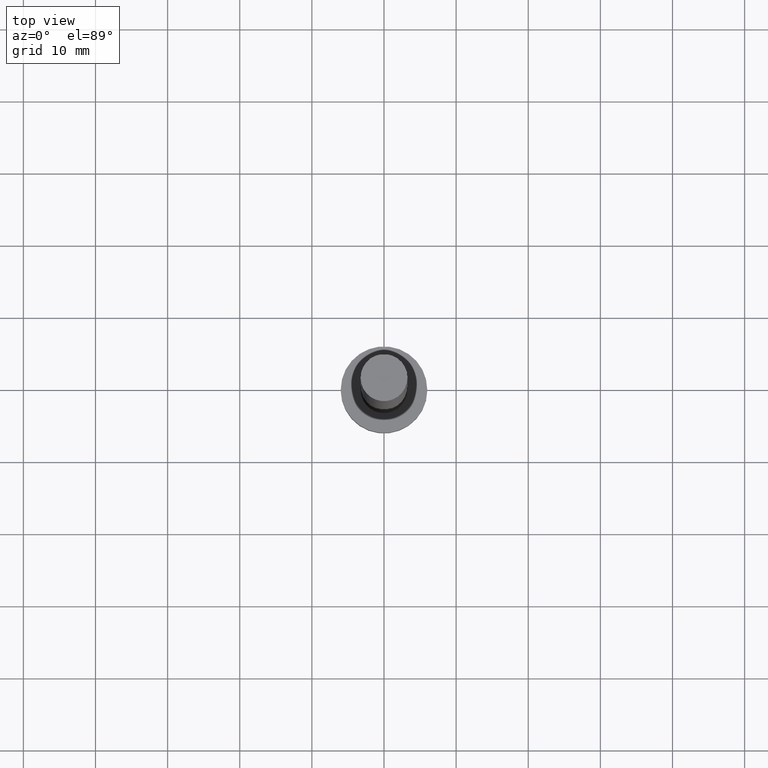
[diagram: clean part render]
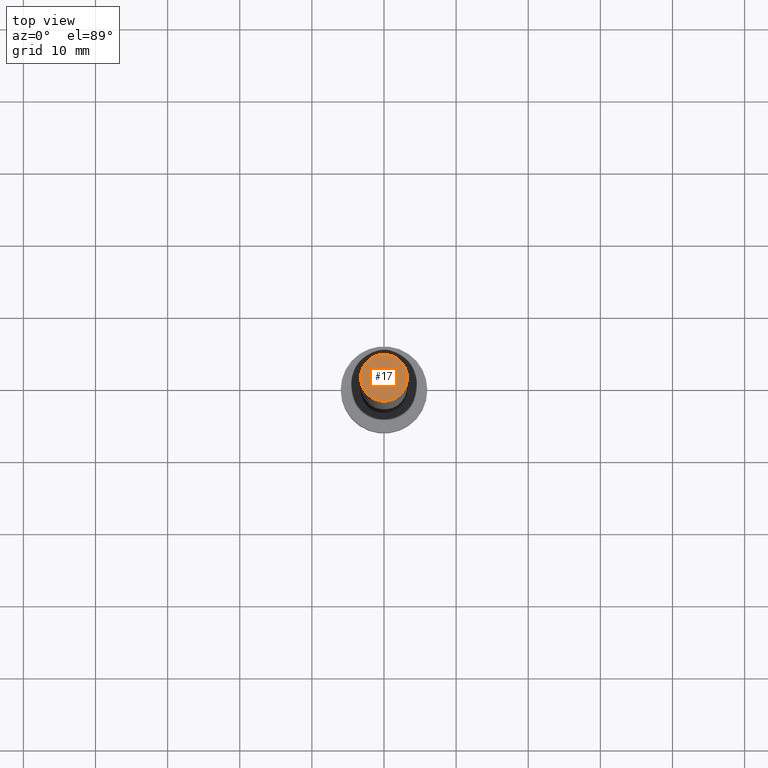
[diagram: same view with one face highlighted and labeled with its STEP entity id]
A machine part, top view. The second image highlights one B-rep face of the part: STEP entity #17.
In plain terms, the highlighted planar face has unit normal (0, 0, 1).
Its self-contained STEP definition (entity closure, byte-faithful):
#16 = PLANE ( 'NONE',  #100 ) ;
#17 = ADVANCED_FACE ( 'NONE', ( #115 ), #16, .T. ) ;
#18 = CIRCLE ( 'NONE', #142, 3.250000000000000444 ) ;
#29 = CARTESIAN_POINT ( 'NONE',  ( 3.250000000000000444, 3.980102097228898231E-16, 100.0000000000000000 ) ) ;
#45 = ORIENTED_EDGE ( 'NONE', *, *, #104, .T. ) ;
#52 = CARTESIAN_POINT ( 'NONE',  ( -3.250000000000000444, 0.000000000000000000, 100.0000000000000000 ) ) ;
#61 = CARTESIAN_POINT ( 'NONE',  ( 0.000000000000000000, 0.000000000000000000, 100.0000000000000000 ) ) ;
#66 = DIRECTION ( 'NONE',  ( 0.000000000000000000, 0.000000000000000000, 1.000000000000000000 ) ) ;
#77 = DIRECTION ( 'NONE',  ( 1.000000000000000000, 0.000000000000000000, -0.000000000000000000 ) ) ;
#86 = DIRECTION ( 'NONE',  ( 1.000000000000000000, 0.000000000000000000, 0.000000000000000000 ) ) ;
#94 = DIRECTION ( 'NONE',  ( 0.000000000000000000, 0.000000000000000000, 1.000000000000000000 ) ) ;
#95 = ORIENTED_EDGE ( 'NONE', *, *, #127, .T. ) ;
#100 = AXIS2_PLACEMENT_3D ( 'NONE', #236, #94, #77 ) ;
#104 = EDGE_CURVE ( 'NONE', #157, #178, #18, .T. ) ;
#115 = FACE_OUTER_BOUND ( 'NONE', #197, .T. ) ;
#127 = EDGE_CURVE ( 'NONE', #178, #157, #169, .T. ) ;
#142 = AXIS2_PLACEMENT_3D ( 'NONE', #61, #223, #164 ) ;
#157 = VERTEX_POINT ( 'NONE', #29 ) ;
#164 = DIRECTION ( 'NONE',  ( 1.000000000000000000, 0.000000000000000000, 0.000000000000000000 ) ) ;
#168 = CARTESIAN_POINT ( 'NONE',  ( 0.000000000000000000, 0.000000000000000000, 100.0000000000000000 ) ) ;
#169 = CIRCLE ( 'NONE', #246, 3.250000000000000444 ) ;
#178 = VERTEX_POINT ( 'NONE', #52 ) ;
#197 = EDGE_LOOP ( 'NONE', ( #95, #45 ) ) ;
#223 = DIRECTION ( 'NONE',  ( 0.000000000000000000, 0.000000000000000000, 1.000000000000000000 ) ) ;
#236 = CARTESIAN_POINT ( 'NONE',  ( 0.000000000000000000, 0.000000000000000000, 100.0000000000000000 ) ) ;
#246 = AXIS2_PLACEMENT_3D ( 'NONE', #168, #66, #86 ) ;